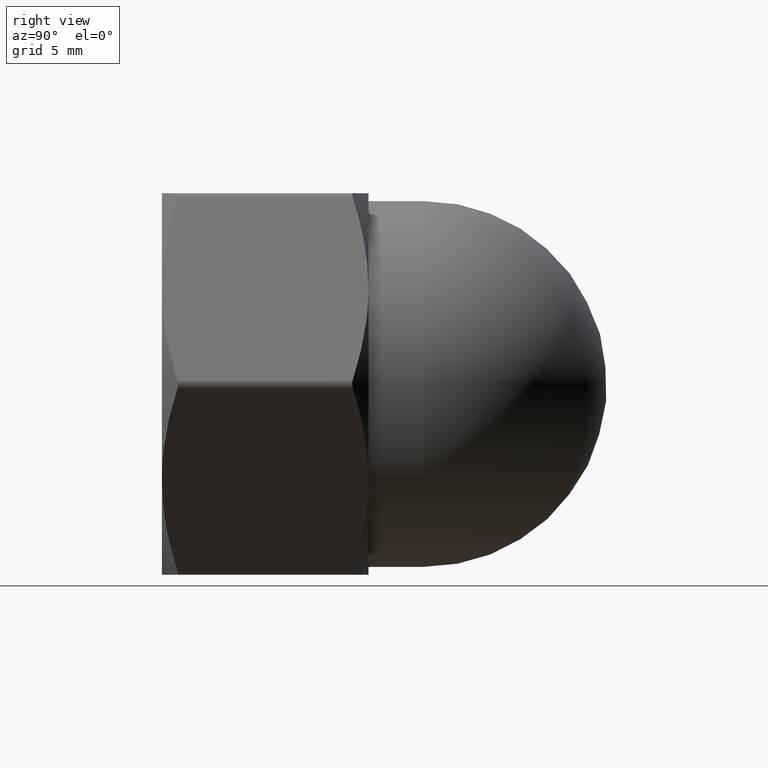
[diagram: clean part render]
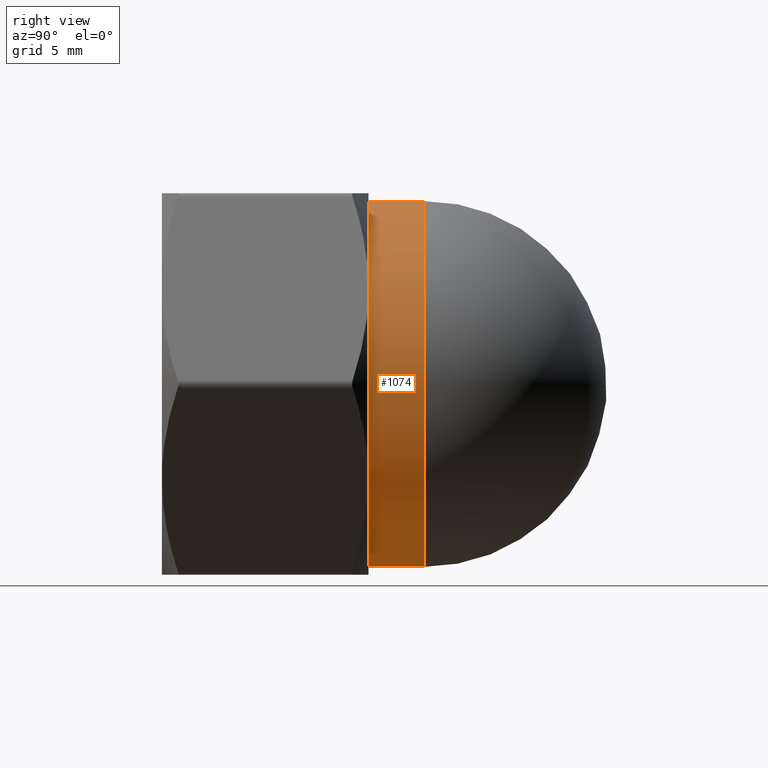
[diagram: same view with one face highlighted and labeled with its STEP entity id]
A machine part, right view. The second image highlights one B-rep face of the part: STEP entity #1074.
In plain terms, the highlighted cylindrical surface (bore or boss wall) has radius 11.5 mm, axis along (-0, 1, -0).
Its self-contained STEP definition (entity closure, byte-faithful):
#14 = DIRECTION ( 'NONE',  ( 0.0000000000000000000, 1.000000000000000000, 0.0000000000000000000 ) ) ;
#25 = CYLINDRICAL_SURFACE ( 'NONE', #473, 11.50000000000000000 ) ;
#63 = EDGE_CURVE ( 'NONE', #1368, #1368, #1370, .T. ) ;
#166 = FACE_OUTER_BOUND ( 'NONE', #1041, .T. ) ;
#305 = AXIS2_PLACEMENT_3D ( 'NONE', #566, #14, #1079 ) ;
#306 = DIRECTION ( 'NONE',  ( -9.850419906185231500E-017, 1.000000000000000000, -0.0000000000000000000 ) ) ;
#313 = DIRECTION ( 'NONE',  ( -1.000000000000000000, 0.0000000000000000000, 0.0000000000000000000 ) ) ;
#345 = DIRECTION ( 'NONE',  ( -1.000000000000000000, 0.0000000000000000000, 0.0000000000000000000 ) ) ;
#346 = ORIENTED_EDGE ( 'NONE', *, *, #1033, .F. ) ;
#420 = CARTESIAN_POINT ( 'NONE',  ( 1.355098306013049600E-015, 13.00000000000000000, 11.50000000000000000 ) ) ;
#459 = FACE_OUTER_BOUND ( 'NONE', #1030, .T. ) ;
#473 = AXIS2_PLACEMENT_3D ( 'NONE', #971, #1178, #345 ) ;
#475 = CIRCLE ( 'NONE', #544, 11.50000000000000000 ) ;
#544 = AXIS2_PLACEMENT_3D ( 'NONE', #929, #306, #313 ) ;
#566 = CARTESIAN_POINT ( 'NONE',  ( 1.355098306013049600E-015, 13.00000000000000000, 0.0000000000000000000 ) ) ;
#908 = ORIENTED_EDGE ( 'NONE', *, *, #63, .T. ) ;
#929 = CARTESIAN_POINT ( 'NONE',  ( 1.010333609296566500E-015, 16.50000000000000000, 0.0000000000000000000 ) ) ;
#971 = CARTESIAN_POINT ( 'NONE',  ( -1.224646799147351500E-016, 28.00000000000000000, 0.0000000000000000000 ) ) ;
#1030 = EDGE_LOOP ( 'NONE', ( #908 ) ) ;
#1033 = EDGE_CURVE ( 'NONE', #1270, #1270, #475, .T. ) ;
#1041 = EDGE_LOOP ( 'NONE', ( #346 ) ) ;
#1074 = ADVANCED_FACE ( 'NONE', ( #459, #166 ), #25, .T. ) ;
#1079 = DIRECTION ( 'NONE',  ( 0.0000000000000000000, 0.0000000000000000000, 1.000000000000000000 ) ) ;
#1178 = DIRECTION ( 'NONE',  ( -9.850419906185231500E-017, 1.000000000000000000, -0.0000000000000000000 ) ) ;
#1270 = VERTEX_POINT ( 'NONE', #1341 ) ;
#1341 = CARTESIAN_POINT ( 'NONE',  ( -11.49999999999999800, 16.50000000000000000, 0.0000000000000000000 ) ) ;
#1368 = VERTEX_POINT ( 'NONE', #420 ) ;
#1370 = CIRCLE ( 'NONE', #305, 11.50000000000000000 ) ;